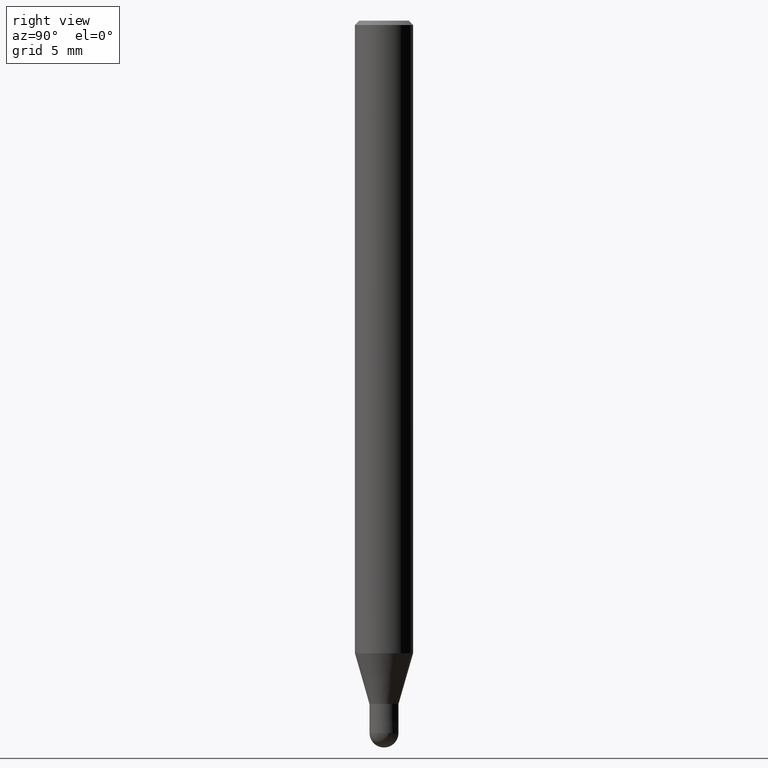
[diagram: clean part render]
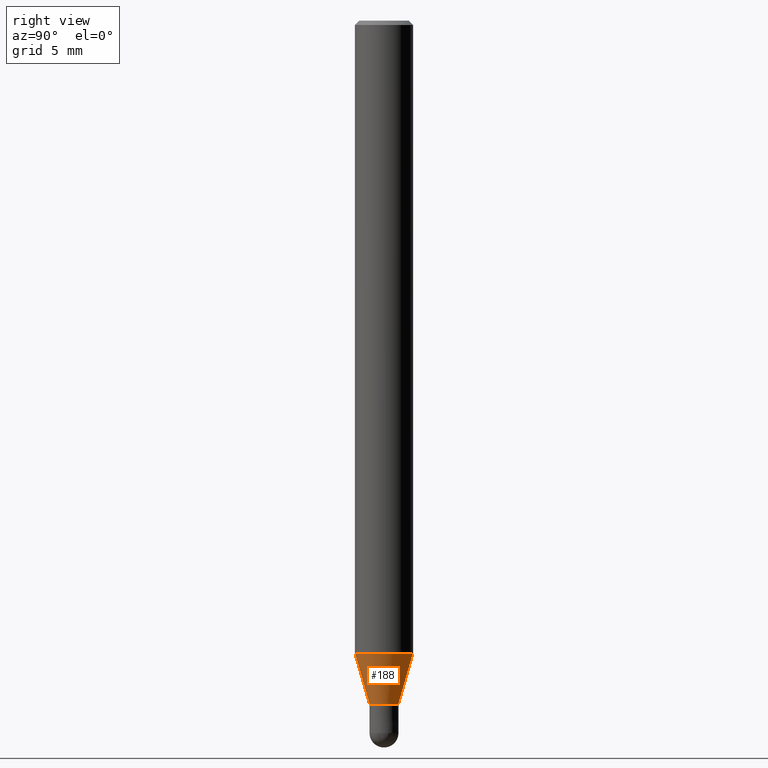
[diagram: same view with one face highlighted and labeled with its STEP entity id]
A machine part, right view. The second image highlights one B-rep face of the part: STEP entity #188.
In plain terms, the highlighted conical surface has half-angle 16.002 deg.
Its self-contained STEP definition (entity closure, byte-faithful):
#86=VERTEX_POINT('',#211);
#98=EDGE_CURVE('',#86,#190,#225,.T.);
#110=EDGE_CURVE('',#150,#190,#238,.T.);
#150=VERTEX_POINT('',#284);
#152=EDGE_CURVE('',#158,#86,#286,.T.);
#158=VERTEX_POINT('',#293);
#162=EDGE_CURVE('',#150,#158,#297,.T.);
#188=ADVANCED_FACE('',(#327),#328,.T.);
#190=VERTEX_POINT('',#330);
#211=CARTESIAN_POINT('',(1.22454512350469E-016,-0.99995,-47.0));
#225=LINE('',#361,#362);
#238=CIRCLE('',#377,1.99995);
#284=CARTESIAN_POINT('',(0.0,1.99995,-43.513));
#286=CIRCLE('',#439,0.99995);
#293=CARTESIAN_POINT('',(0.0,0.99995,-47.0));
#297=LINE('',#453,#454);
#327=FACE_OUTER_BOUND('',#488,.T.);
#328=CONICAL_SURFACE('',#489,1.49995,0.279284171542493);
#330=CARTESIAN_POINT('',(2.44915147732706E-016,-1.99995,-43.513));
#361=CARTESIAN_POINT('',(1.83684830041587E-016,-1.49995,-45.2565));
#362=VECTOR('',#505,1.0);
#377=AXIS2_PLACEMENT_3D('',#519,#520,#521);
#439=AXIS2_PLACEMENT_3D('',#592,#593,#594);
#453=CARTESIAN_POINT('',(-1.83684830041587E-016,1.49995,-45.2565));
#454=VECTOR('',#602,1.0);
#488=EDGE_LOOP('',(#643,#644,#645,#646));
#489=AXIS2_PLACEMENT_3D('',#647,#648,#649);
#505=DIRECTION('',(3.3758432755158E-017,-0.275667626987133,0.961253015304131));
#519=CARTESIAN_POINT('',(0.0,0.0,-43.513));
#520=DIRECTION('',(0.0,0.0,-1.0));
#521=DIRECTION('',(0.0,1.0,0.0));
#592=CARTESIAN_POINT('',(0.0,0.0,-47.0));
#593=DIRECTION('',(0.0,0.0,-1.0));
#594=DIRECTION('',(0.0,1.0,0.0));
#602=DIRECTION('',(3.3758432755158E-017,-0.275667626987133,-0.961253015304131));
#643=ORIENTED_EDGE('',*,*,#162,.F.);
#644=ORIENTED_EDGE('',*,*,#110,.T.);
#645=ORIENTED_EDGE('',*,*,#98,.F.);
#646=ORIENTED_EDGE('',*,*,#152,.F.);
#647=CARTESIAN_POINT('',(0.0,0.0,-45.2565));
#648=DIRECTION('',(-0.0,-0.0,1.0));
#649=DIRECTION('',(0.0,1.0,0.0));